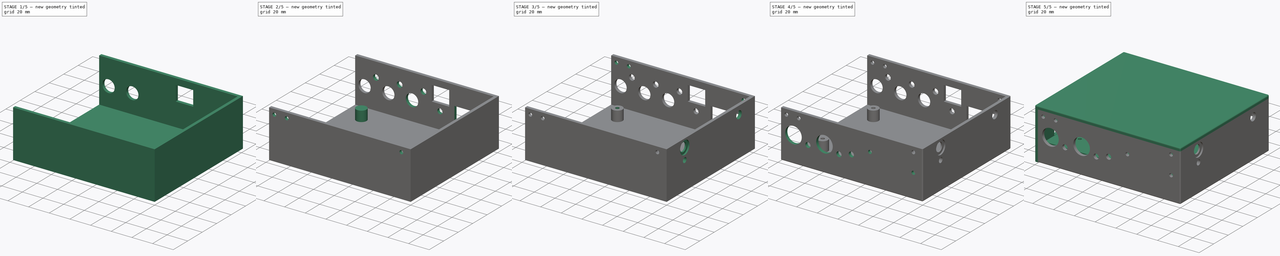
[diagram: build sequence overview — one tinted view per stage of 5, left to right]
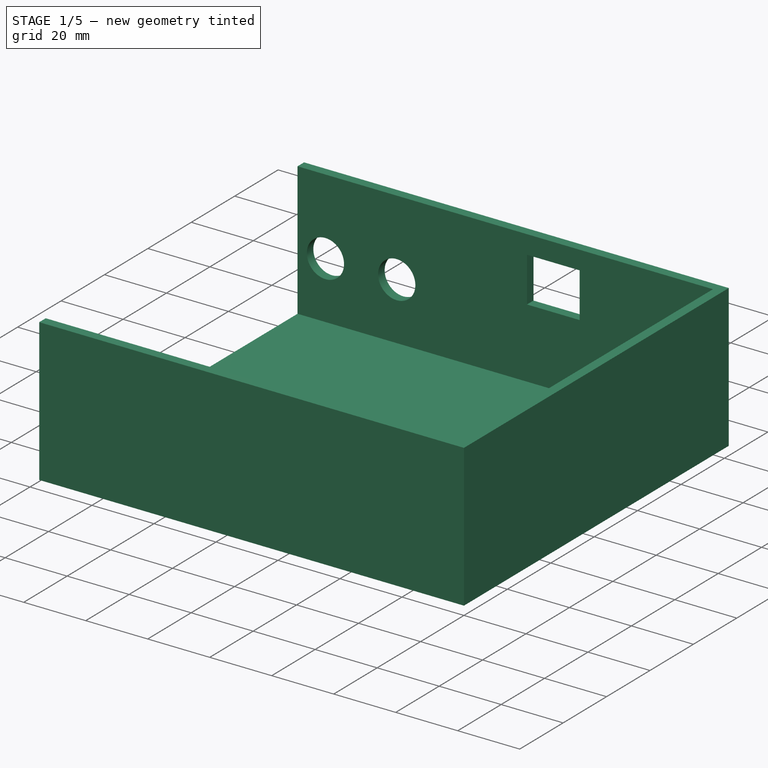
[diagram: stage 1 of 5 — iso view after this stage's code; geometry added in this stage tinted green]
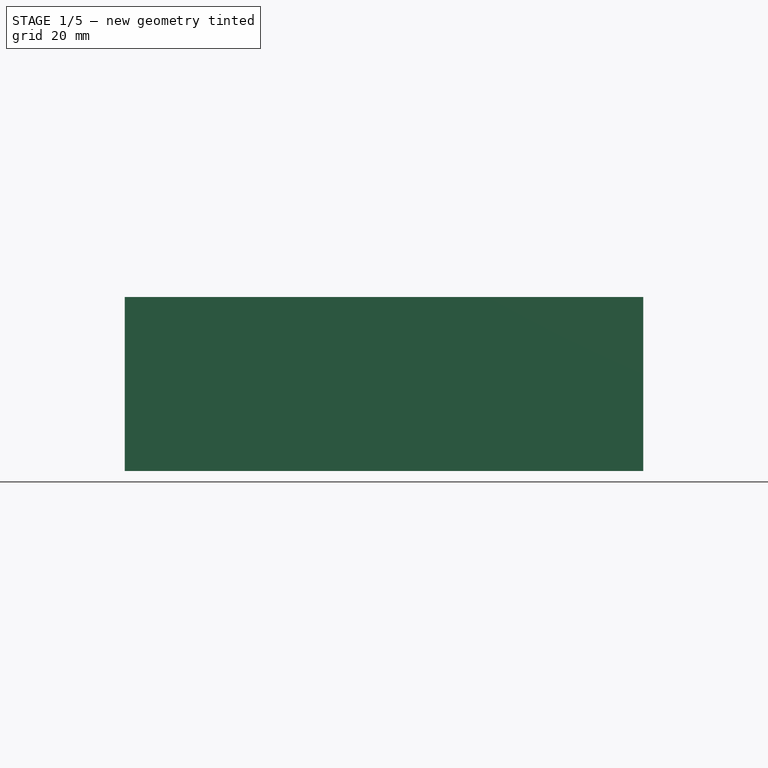
[diagram: stage 1 of 5 — front view after this stage's code; geometry added in this stage tinted green]
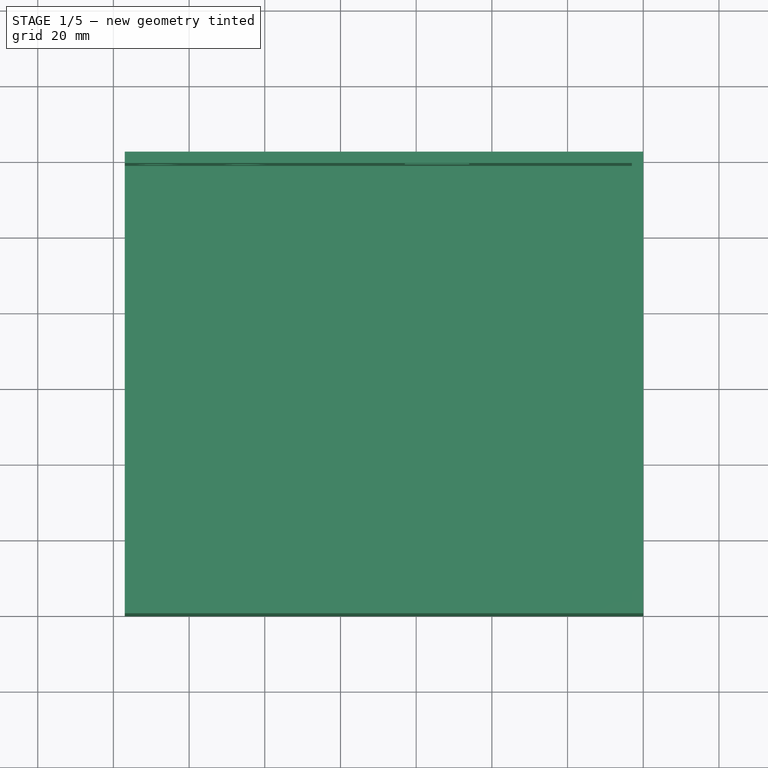
[diagram: stage 1 of 5 — top view after this stage's code; geometry added in this stage tinted green]
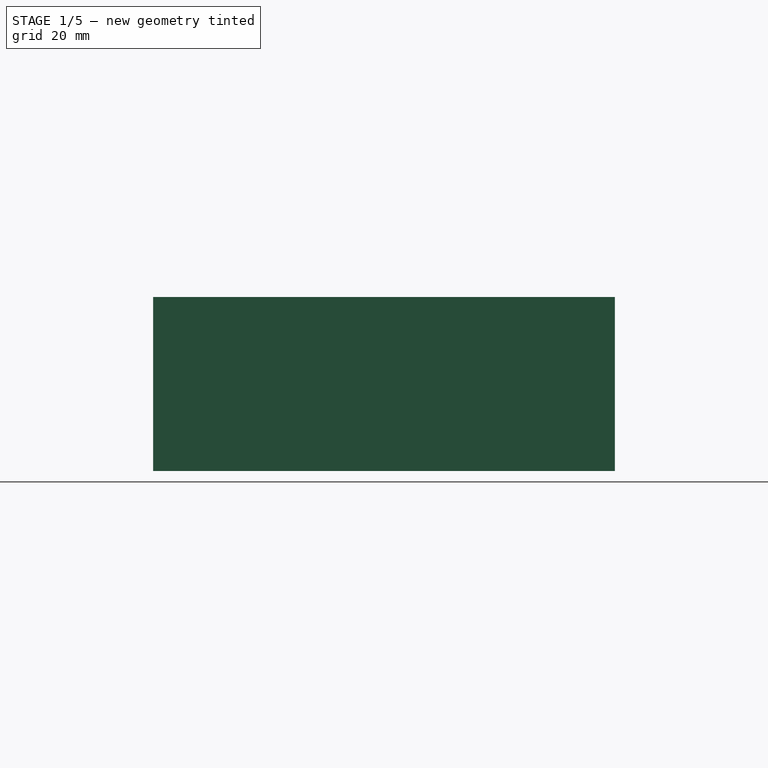
[diagram: stage 1 of 5 — right view after this stage's code; geometry added in this stage tinted green]
FCSTD DOCUMENT  (FreeCAD 0.20R29177 +426 (Git))
Label: Case
License: All rights reserved
LicenseURL: http://en.wikipedia.org/wiki/All_rights_reserved
objects: Sketcher::SketchObject×19, PartDesign::Pocket×16, Part::FeaturePython×5, PartDesign::Pad×3, TechDraw::DrawViewPart×3, TechDraw::DrawSVGTemplate×1, TechDraw::DrawPage×1, PartDesign::Fillet×1, PartDesign::Body×1
note: 65 computed .brp shape members not serialized (recipe doc carries the construction recipe); baked Part::Feature solids carry a one-line shape summary decoded from their .brp

FEATURE [Sketcher::SketchObject] Sketch  label="CaseBody"
  FullyConstrained = true
  MapMode = 5
  Support = -> [XY_Plane]
  sketch-geometry (4):
    g0: LineSegment StartX=3 StartY=122 StartZ=0 EndX=140 EndY=122 EndZ=0
    g1: LineSegment StartX=140 StartY=122 StartZ=0 EndX=140 EndY=0 EndZ=0
    g2: LineSegment StartX=140 StartY=0 StartZ=0 EndX=3 EndY=0 EndZ=0
    g3: LineSegment StartX=3 StartY=0 StartZ=0 EndX=3 EndY=122 EndZ=0
  constraints (12):
    c: Coincident(g0,g1)
    c: Coincident(g1,g2)
    c: Coincident(g2,g3)
    c: Coincident(g3,g0)
    c: Horizontal(g0)
    c: Horizontal(g2)
    c: Vertical(g1)
    c: Vertical(g3)
    c: DistanceY(g3,g3) = 122
    c: DistanceX(g2,g2) = 137
    c: DistanceY(g-1,g2) = 0
    c: DistanceX(g-1,g2) = 3
FEATURE [PartDesign::Pad] Pad  label="CaseBody001"
  Direction = (0,0,1)
  Length = 46
  Length2 = 10
  Profile = -> Sketch
  ReferenceAxis = -> Sketch [N_Axis]
  Type = 0
FEATURE [Sketcher::SketchObject] Sketch001  label="CaseBodyPocket"
  AttachmentOffset = pos=(0,0,47) rot=(0,0,1;0rad)
  FullyConstrained = true
  MapMode = 5
  Placement = pos=(0,0,47) rot=(0,0,1;0rad)
  Support = -> [XY_Plane]
  sketch-geometry (4):
    g0: LineSegment StartX=0 StartY=119 StartZ=0 EndX=137 EndY=119 EndZ=0
    g1: LineSegment StartX=137 StartY=119 StartZ=0 EndX=137 EndY=3 EndZ=0
    g2: LineSegment StartX=137 StartY=3 StartZ=0 EndX=0 EndY=3 EndZ=0
    g3: LineSegment StartX=0 StartY=3 StartZ=0 EndX=0 EndY=119 EndZ=0
  constraints (12):
    c: Coincident(g0,g1)
    c: Coincident(g1,g2)
    c: Coincident(g2,g3)
    c: Coincident(g3,g0)
    c: Horizontal(g0)
    c: Horizontal(g2)
    c: Vertical(g1)
    c: Vertical(g3)
    c: DistanceY(g3,g3) = 116
    c: DistanceX(g2,g2) = 137
    c: DistanceY(g-1,g2) = 3
    c: DistanceX(g-1,g2) = 0
FEATURE [PartDesign::Pocket] Pocket  label="CaseBodyPocket001"
  BaseFeature = -> Pad
  Direction = (0,0,-1)
  Length = 44
  Length2 = 5
  Profile = -> Sketch001
  ReferenceAxis = -> Sketch001 [N_Axis]
  Type = 0
FEATURE [Sketcher::SketchObject] Sketch005  label="RJ45-Hole"
  AttachmentOffset = pos=(77,25.5,-117) rot=(0,0,1;0rad)
  FullyConstrained = true
  MapMode = 5
  Placement = pos=(77,117,25.5) rot=(1,0,0;1.5708rad)
  Support = -> [XZ_Plane]
  sketch-geometry (4):
    g0: LineSegment StartX=0 StartY=14.5 StartZ=0 EndX=17 EndY=14.5 EndZ=0
    g1: LineSegment StartX=17 StartY=14.5 StartZ=0 EndX=17 EndY=0 EndZ=0
    g2: LineSegment StartX=17 StartY=0 StartZ=0 EndX=0 EndY=0 EndZ=0
    g3: LineSegment StartX=0 StartY=0 StartZ=0 EndX=0 EndY=14.5 EndZ=0
  constraints (11):
    c: Coincident(g0,g1)
    c: Coincident(g1,g2)
    c: Coincident(g2,g3)
    c: Coincident(g3,g0)
    c: Horizontal(g0)
    c: Horizontal(g2)
    c: Vertical(g1)
    c: Vertical(g3)
    c: Coincident(g2,g-1)
    c: DistanceX(g0,g0) = 17
    c: DistanceY(g1,g1) = 14.5
FEATURE [PartDesign::Pocket] Pocket003  label="RJ45-Hole001"
  BaseFeature = -> Pocket
  Direction = (0,1,2e-16)
  Length = 5
  Length2 = 5
  Profile = -> Sketch005
  ReferenceAxis = -> Sketch005 [N_Axis]
  Type = 0
FEATURE [Sketcher::SketchObject] Sketch006  label="RCA-Hole"
  AttachmentOffset = pos=(12,21.5,-117) rot=(0,0,1;0rad)
  FullyConstrained = true
  MapMode = 5
  Placement = pos=(12,117,21.5) rot=(1,0,0;1.5708rad)
  Support = -> [XZ_Plane]
  sketch-geometry (1):
    g0: Circle CenterX=0 CenterY=0 CenterZ=0 NormalX=0 NormalY=0 NormalZ=1 AngleXU=0 Radius=6
  constraints (2):
    c: Coincident(g0,g-1)
    c: Diameter(g0) = 12
FEATURE [Sketcher::SketchObject] Sketch007  label="RCA-Hole001"
  AttachmentOffset = pos=(35,21.5,-117) rot=(0,0,1;0rad)
  FullyConstrained = true
  MapMode = 5
  Placement = pos=(35,117,21.5) rot=(1,0,0;1.5708rad)
  Support = -> [XZ_Plane]
  sketch-geometry (1):
    g0: Circle CenterX=0 CenterY=0 CenterZ=0 NormalX=0 NormalY=0 NormalZ=1 AngleXU=0 Radius=6
  constraints (2):
    c: Coincident(g0,g-1)
    c: Diameter(g0) = 12
FEATURE [Sketcher::SketchObject] Sketch008  label="RCA-Hole002"
  AttachmentOffset = pos=(58,21.5,-117) rot=(0,0,1;0rad)
  FullyConstrained = true
  MapMode = 5
  Placement = pos=(58,117,21.5) rot=(1,0,0;1.5708rad)
  Support = -> [XZ_Plane]
  sketch-geometry (1):
    g0: Circle CenterX=0 CenterY=0 CenterZ=0 NormalX=0 NormalY=0 NormalZ=1 AngleXU=0 Radius=6
  constraints (2):
    c: Coincident(g0,g-1)
    c: Diameter(g0) = 12
FEATURE [PartDesign::Pocket] Pocket004  label="RCA-HolePocket"
  BaseFeature = -> Pocket003
  Direction = (0,1,2e-16)
  Length = 5
  Length2 = 5
  Profile = -> Sketch006
  ReferenceAxis = -> Sketch006 [N_Axis]
  Type = 0
FEATURE [PartDesign::Pocket] Pocket005  label="RCA-Hole001Pocket"
  BaseFeature = -> Pocket004
  Direction = (0,1,2e-16)
  Length = 5
  Length2 = 5
  Profile = -> Sketch007
  ReferenceAxis = -> Sketch007 [N_Axis]
  Type = 0
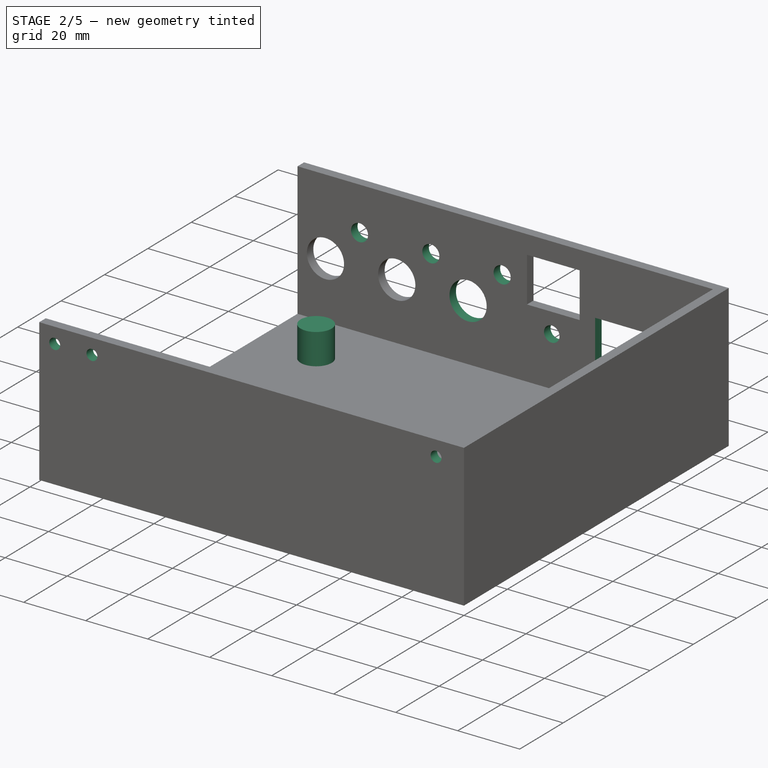
[diagram: stage 2 of 5 — iso view after this stage's code; geometry added in this stage tinted green]
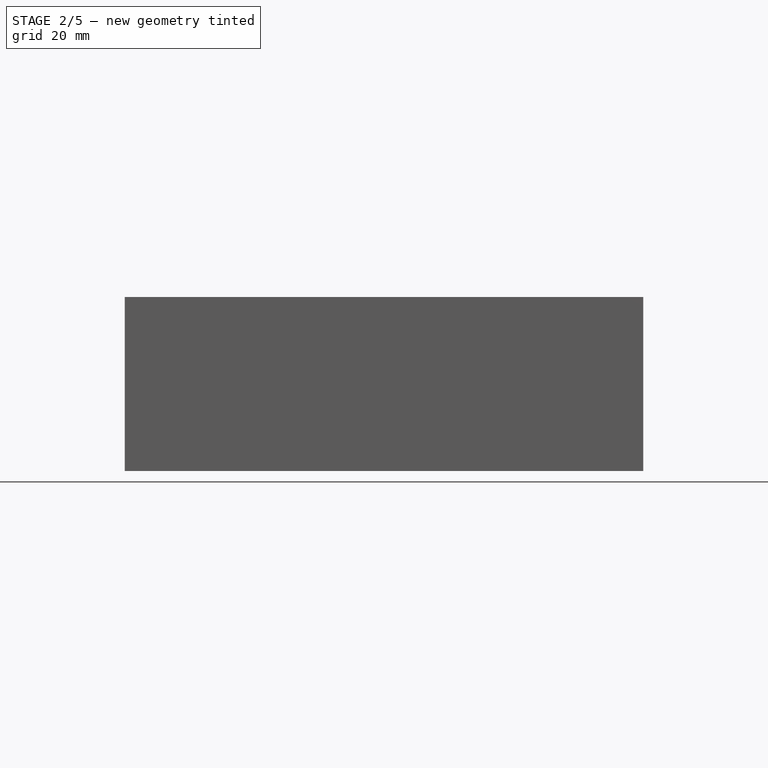
[diagram: stage 2 of 5 — front view after this stage's code; geometry added in this stage tinted green]
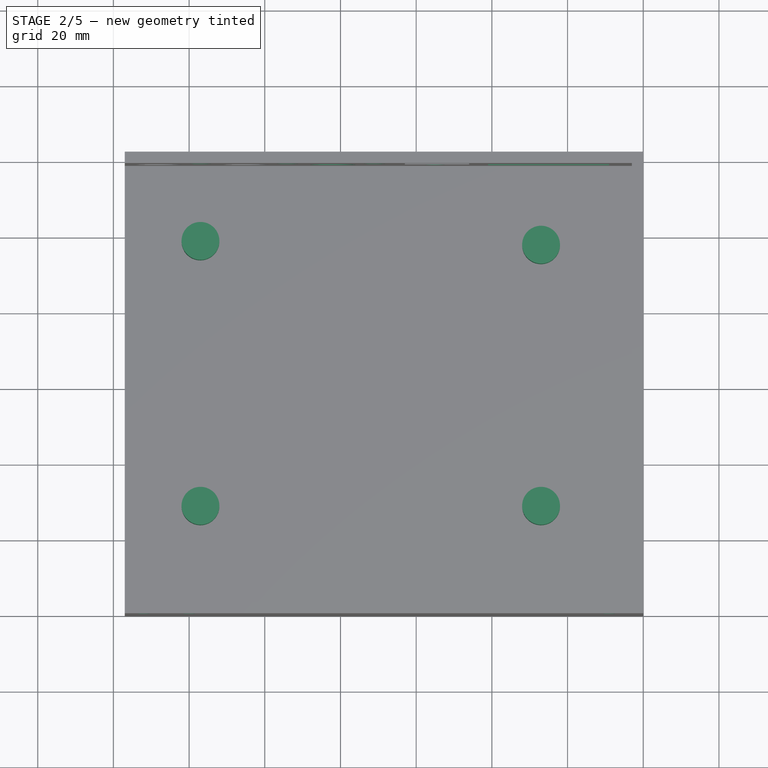
[diagram: stage 2 of 5 — top view after this stage's code; geometry added in this stage tinted green]
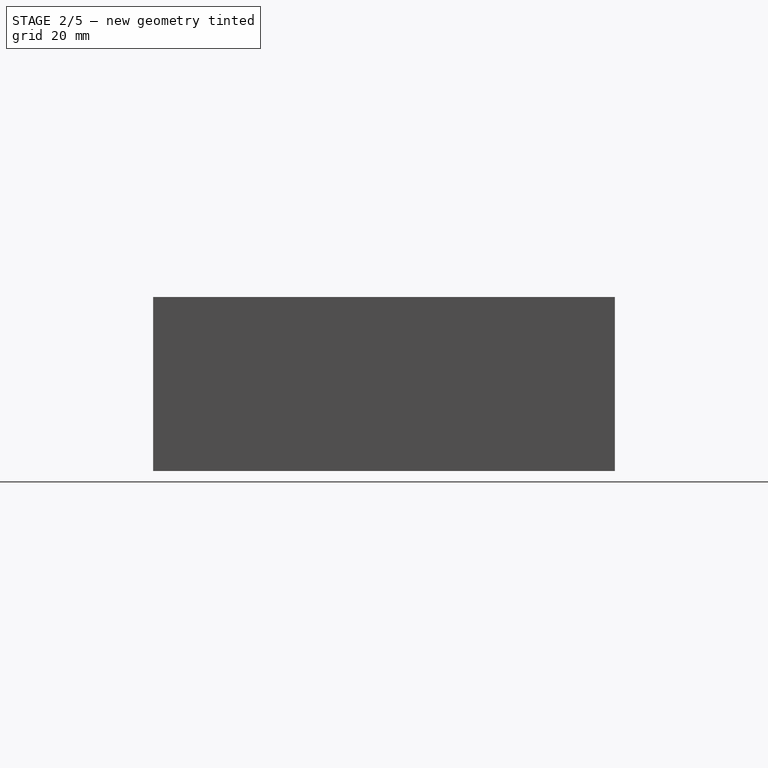
[diagram: stage 2 of 5 — right view after this stage's code; geometry added in this stage tinted green]
FEATURE [PartDesign::Pocket] Pocket006  label="RCA-Hole002Pocket"
  BaseFeature = -> Pocket005
  Direction = (0,1,2e-16)
  Length = 5
  Length2 = 5
  Profile = -> Sketch008
  ReferenceAxis = -> Sketch008 [N_Axis]
  Type = 0
FEATURE [Sketcher::SketchObject] Sketch009  label="LEDholes"
  AttachmentOffset = pos=(0,0,-117) rot=(0,0,1;0rad)
  FullyConstrained = true
  MapMode = 5
  Placement = pos=(0,117,2.6e-14) rot=(1,0,0;1.5708rad)
  Support = -> [XZ_Plane]
  sketch-geometry (4):
    g0: Circle CenterX=23 CenterY=32 CenterZ=0 NormalX=0 NormalY=0 NormalZ=1 AngleXU=0 Radius=2.75
    g1: Circle CenterX=46 CenterY=32 CenterZ=0 NormalX=0 NormalY=0 NormalZ=1 AngleXU=0 Radius=2.75
    g2: Circle CenterX=69 CenterY=32 CenterZ=0 NormalX=0 NormalY=0 NormalZ=1 AngleXU=0 Radius=2.75
    g3: Circle CenterX=85 CenterY=19 CenterZ=0 NormalX=0 NormalY=0 NormalZ=1 AngleXU=0 Radius=2.5
  constraints (12):
    c: Equal(g0,g1)
    c: Equal(g1,g2)
    c: Diameter(g0) = 5.5
    c: Horizontal(g0,g1)
    c: Horizontal(g1,g2)
    c: DistanceX(g0,g1) = 23
    c: DistanceX(g1,g2) = 23
    c: DistanceY(g-1,g2) = 32
    c: DistanceX(g-1,g0) = 23
    c: DistanceY(g-1,g3) = 19
    c: DistanceX(g-1,g3) = 85
    c: Diameter(g3) = 5
FEATURE [PartDesign::Pocket] Pocket007  label="LEDholes001"
  BaseFeature = -> Pocket006
  Direction = (0,1,2e-16)
  Length = 5
  Length2 = 5
  Profile = -> Sketch009
  ReferenceAxis = -> Sketch009 [N_Axis]
  Type = 0
FEATURE [PartDesign::Pad] Pad002  label="PCBSupport002"
  BaseFeature = -> Pocket007
  Direction = (0,0,1)
  Length = 10
  Length2 = 10
  Profile = -> Sketch002
  ReferenceAxis = -> Sketch002 [N_Axis]
  Type = 0
FEATURE [TechDraw::DrawSVGTemplate] Template
  EditableTexts = Designed_by_Name=Radmilo Felix; Drawing_number=Drawing number; FC-Date=2023.06.10; FC-SC=1:1; FC-SH=Sheet; FC-Title=Title; Subtitle=Dew Heater Controller Case; Weight=Weight
  Height = 210
  Orientation = 1
  Width = 297
FEATURE [Sketcher::SketchObject] Sketch010  label="RS232-DB9-ConnectorHolderHole"
  AttachmentOffset = pos=(115,21,-117) rot=(0,0,1;0rad)
  FullyConstrained = true
  MapMode = 5
  Placement = pos=(115,117,21) rot=(1,0,0;1.5708rad)
  Support = -> [XZ_Plane]
  sketch-geometry (4):
    g0: LineSegment StartX=-16 StartY=6.5 StartZ=0 EndX=16 EndY=6.5 EndZ=0
    g1: LineSegment StartX=16 StartY=6.5 StartZ=0 EndX=16 EndY=-6.5 EndZ=0
    g2: LineSegment StartX=16 StartY=-6.5 StartZ=0 EndX=-16 EndY=-6.5 EndZ=0
    g3: LineSegment StartX=-16 StartY=-6.5 StartZ=0 EndX=-16 EndY=6.5 EndZ=0
  constraints (10):
    c: Coincident(g0,g1)
    c: Coincident(g1,g2)
    c: Coincident(g2,g3)
    c: Coincident(g3,g0)
    c: Horizontal(g2)
    c: Vertical(g1)
    c: DistanceY(g3,g3) = 13
    c: DistanceX(g0,g0) = 32
    c: Symmetric(g0,g0,g-2)
    c: Symmetric(g0,g2,g-1)
FEATURE [PartDesign::Pocket] Pocket008  label="RS232-DB9-ConnectorHolderHole001"
  BaseFeature = -> Pad002
  Direction = (0,1,2e-16)
  Length = 5
  Length2 = 5
  Profile = -> Sketch010
  ReferenceAxis = -> Sketch010 [N_Axis]
  Type = 0
FEATURE [Sketcher::SketchObject] Sketch011  label="MountingScrewsB"
  FullyConstrained = true
  MapMode = 5
  Placement = pos=(0,0,0) rot=(1,0,0;1.5708rad)
  Support = -> [XZ_Plane]
  sketch-geometry (3):
    g0: Circle CenterX=8 CenterY=41 CenterZ=0 NormalX=0 NormalY=0 NormalZ=1 AngleXU=0 Radius=1.75
    g1: Circle CenterX=20 CenterY=41 CenterZ=0 NormalX=0 NormalY=0 NormalZ=1 AngleXU=0 Radius=1.75
    g2: Circle CenterX=131 CenterY=41 CenterZ=0 NormalX=0 NormalY=0 NormalZ=1 AngleXU=0 Radius=1.75
  constraints (9):
    c: Horizontal(g0,g1)
    c: Horizontal(g1,g2)
    c: Equal(g0,g1)
    c: Equal(g1,g2)
    c: Diameter(g0) = 3.5
    c: DistanceY(g-1,g0) = 41
    c: DistanceX(g-1,g0) = 8
    c: DistanceX(g-1,g1) = 20
    c: DistanceX(g-1,g2) = 131
FEATURE [Sketcher::SketchObject] Sketch012  label="MountingScrewsT"
  AttachmentOffset = pos=(0,0,-122) rot=(0,0,1;0rad)
  FullyConstrained = true
  MapMode = 5
  Placement = pos=(0,122,2.71e-14) rot=(1,0,0;1.5708rad)
  Support = -> [XZ_Plane]
  sketch-geometry (3):
    g0: Circle CenterX=8 CenterY=41 CenterZ=0 NormalX=0 NormalY=0 NormalZ=1 AngleXU=0 Radius=1.75
    g1: Circle CenterX=20 CenterY=41 CenterZ=0 NormalX=0 NormalY=0 NormalZ=1 AngleXU=0 Radius=1.75
    g2: Circle CenterX=131 CenterY=41 CenterZ=0 NormalX=0 NormalY=0 NormalZ=1 AngleXU=0 Radius=1.75
  constraints (9):
    c: Horizontal(g0,g1)
    c: Horizontal(g1,g2)
    c: Equal(g0,g1)
    c: Equal(g1,g2)
    c: Diameter(g0) = 3.5
    c: DistanceY(g-1,g0) = 41
    c: DistanceX(g-1,g0) = 8
    c: DistanceX(g-1,g1) = 20
    c: DistanceX(g-1,g2) = 131
FEATURE [PartDesign::Pocket] Pocket009  label="MountingScrewsB001"
  BaseFeature = -> Pocket008
  Direction = (0,1,2e-16)
  Length = 5
  Length2 = 5
  Profile = -> Sketch011
  ReferenceAxis = -> Sketch011 [N_Axis]
  Type = 0
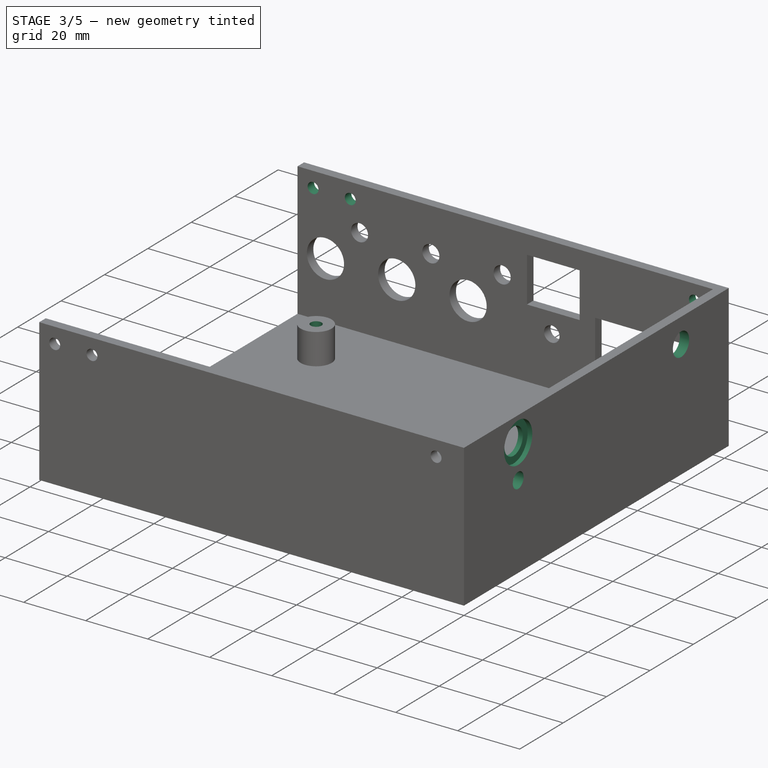
[diagram: stage 3 of 5 — iso view after this stage's code; geometry added in this stage tinted green]
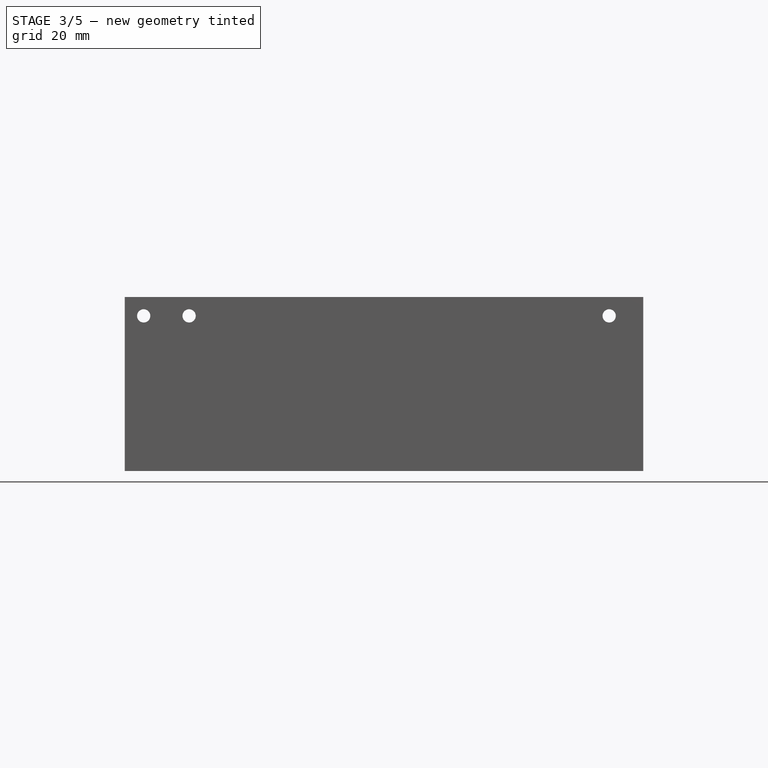
[diagram: stage 3 of 5 — front view after this stage's code; geometry added in this stage tinted green]
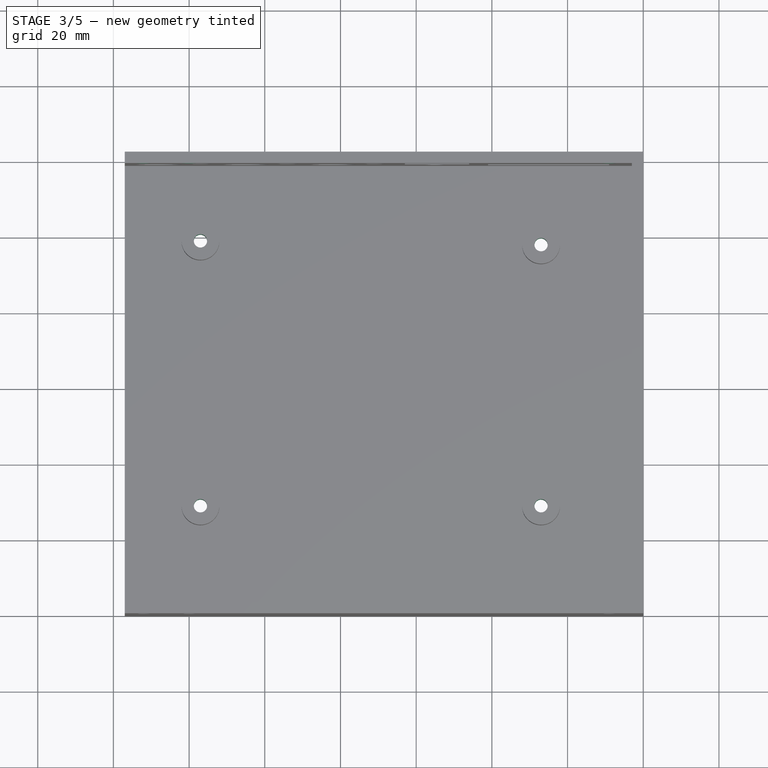
[diagram: stage 3 of 5 — top view after this stage's code; geometry added in this stage tinted green]
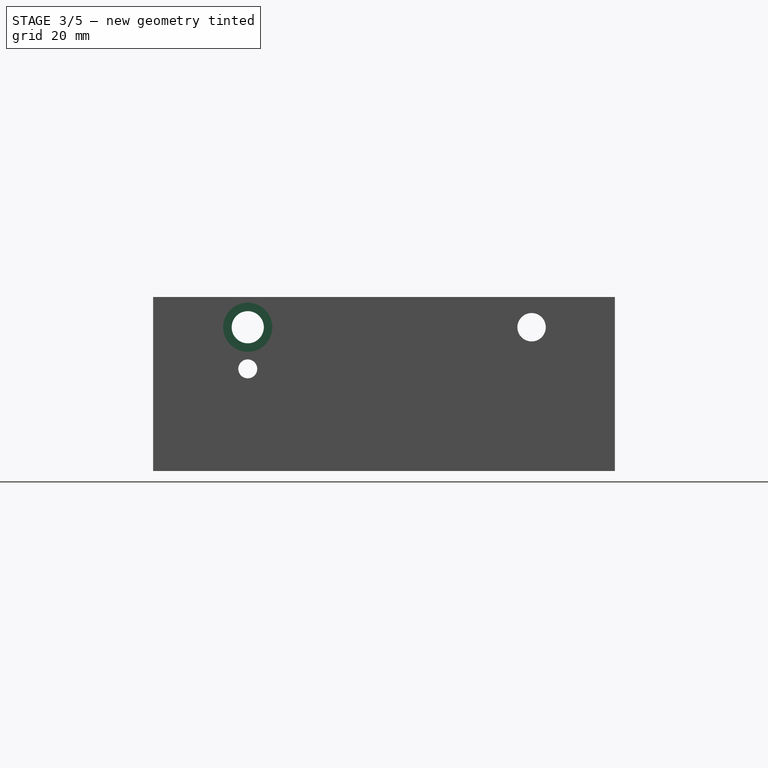
[diagram: stage 3 of 5 — right view after this stage's code; geometry added in this stage tinted green]
FEATURE [PartDesign::Pocket] Pocket010  label="MountingScrewsT001"
  BaseFeature = -> Pocket009
  Direction = (0,1,2e-16)
  Length = 5
  Length2 = 5
  Profile = -> Sketch012
  ReferenceAxis = -> Sketch012 [N_Axis]
  Reversed = true
  Type = 0
FEATURE [Sketcher::SketchObject] Sketch013  label="PCBSscrewHeadHoles"
  FullyConstrained = true
  MapMode = 5
  Support = -> [XY_Plane]
  sketch-geometry (4):
    g0: Circle CenterX=23 CenterY=99 CenterZ=0 NormalX=0 NormalY=0 NormalZ=1 AngleXU=0 Radius=3.25
    g1: Circle CenterX=113 CenterY=98 CenterZ=0 NormalX=0 NormalY=0 NormalZ=1 AngleXU=0 Radius=3.25
    g2: Circle CenterX=23 CenterY=29 CenterZ=0 NormalX=0 NormalY=0 NormalZ=1 AngleXU=0 Radius=3.25
    g3: Circle CenterX=113 CenterY=29 CenterZ=0 NormalX=0 NormalY=0 NormalZ=1 AngleXU=0 Radius=3.25
  constraints (12):
    c: Equal(g0,g1)
    c: Equal(g1,g3)
    c: Equal(g3,g2)
    c: Diameter(g0) = 6.5
    c: DistanceX(g2) = 23
    c: DistanceY(g-1,g2) = 29
    c: DistanceX(g-1,g1) = 113
    c: DistanceY(g-1,g1) = 98
    c: DistanceY(g-1,g3) = 29
    c: DistanceX(g-1,g3) = 113
    c: DistanceX(g-1,g0) = 23
    c: DistanceY(g-1,g0) = 99
FEATURE [PartDesign::Pocket] Pocket011  label="PCBSscrewHeadHoles001"
  BaseFeature = -> Pocket010
  Direction = (0,0,-1)
  Length = 3.5
  Length2 = 5
  Profile = -> Sketch013
  ReferenceAxis = -> Sketch013 [N_Axis]
  Reversed = true
  Type = 0
FEATURE [PartDesign::Pocket] Pocket012  label="PCBSupportHoles001"
  BaseFeature = -> Pocket011
  Direction = (0,0,-1)
  Length = 13
  Length2 = 5
  Profile = -> Sketch003
  ReferenceAxis = -> Sketch003 [N_Axis]
  Type = 0
FEATURE [Sketcher::SketchObject] Sketch014  label="PowerReset-PLEDHoles"
  AttachmentOffset = pos=(0,0,140) rot=(0,0,1;0rad)
  FullyConstrained = true
  MapMode = 5
  Placement = pos=(140,-3.11e-14,3.11e-14) rot=(0.57735,0.57735,0.57735;2.0944rad)
  Support = -> [YZ_Plane]
  sketch-geometry (3):
    g0: Circle CenterX=25 CenterY=38 CenterZ=0 NormalX=0 NormalY=0 NormalZ=1 AngleXU=0 Radius=4.25
    g1: Circle CenterX=100 CenterY=38 CenterZ=0 NormalX=0 NormalY=0 NormalZ=1 AngleXU=0 Radius=3.75
    g2: Circle CenterX=25 CenterY=27 CenterZ=0 NormalX=0 NormalY=0 NormalZ=1 AngleXU=0 Radius=2.5
  constraints (9):
    c: Diameter(g0) = 8.5
    c: Diameter(g1) = 7.5
    c: Diameter(g2) = 5
    c: DistanceX(g-1,g0) = 25
    c: DistanceY(g-1,g0) = 38
    c: DistanceY(g-1,g1) = 38
    c: DistanceX(g-1,g1) = 100
    c: Vertical(g0,g2)
    c: DistanceY(g2,g0) = 11
FEATURE [Sketcher::SketchObject] Sketch015  label="PowerConnectorNutHole"
  AttachmentOffset = pos=(0,0,140) rot=(0,0,1;0rad)
  FullyConstrained = true
  MapMode = 5
  Placement = pos=(140,-3.11e-14,3.11e-14) rot=(0.57735,0.57735,0.57735;2.0944rad)
  Support = -> [YZ_Plane]
  sketch-geometry (1):
    g0: Circle CenterX=25 CenterY=38 CenterZ=0 NormalX=0 NormalY=0 NormalZ=1 AngleXU=0 Radius=6.5
  constraints (3):
    c: Diameter(g0) = 13
    c: DistanceX(g-1,g0) = 25
    c: DistanceY(g-1,g0) = 38
FEATURE [PartDesign::Pocket] Pocket013  label="PowerReset-PLEDHoles001"
  BaseFeature = -> Pocket012
  Direction = (-1,2e-16,-3e-16)
  Length = 5
  Length2 = 5
  Profile = -> Sketch014
  ReferenceAxis = -> Sketch014 [N_Axis]
  Type = 0
FEATURE [PartDesign::Pocket] Pocket014  label="PowerConnectorNutHole001"
  BaseFeature = -> Pocket013
  Direction = (-1,2e-16,-3e-16)
  Length = 1.5
  Length2 = 5
  Profile = -> Sketch015
  ReferenceAxis = -> Sketch015 [N_Axis]
  Type = 0
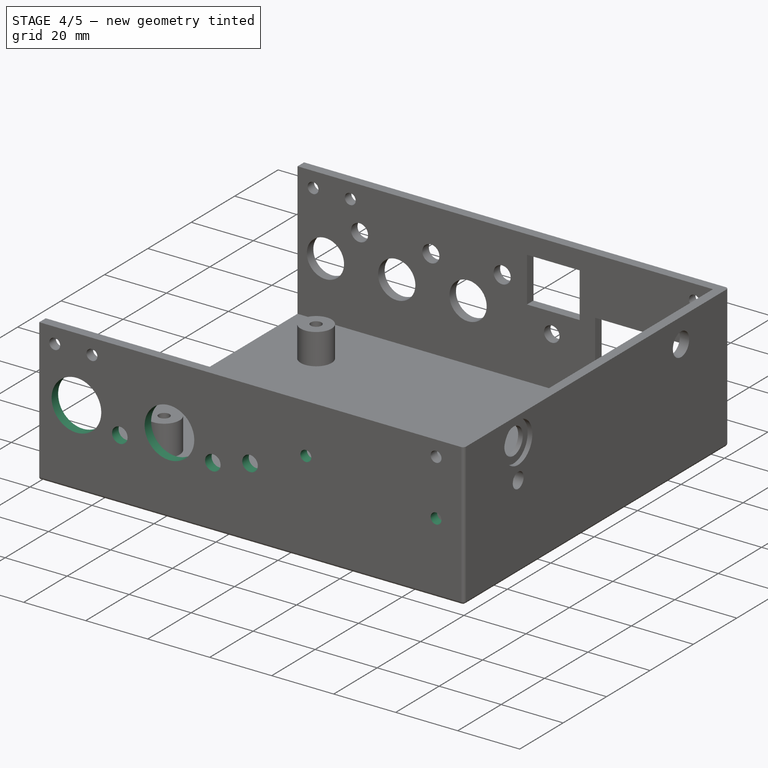
[diagram: stage 4 of 5 — iso view after this stage's code; geometry added in this stage tinted green]
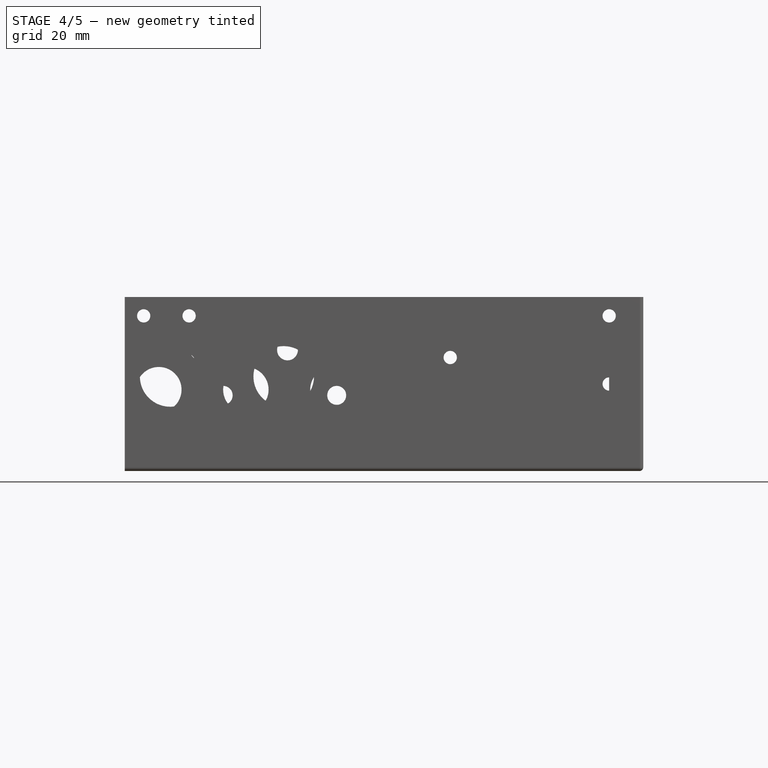
[diagram: stage 4 of 5 — front view after this stage's code; geometry added in this stage tinted green]
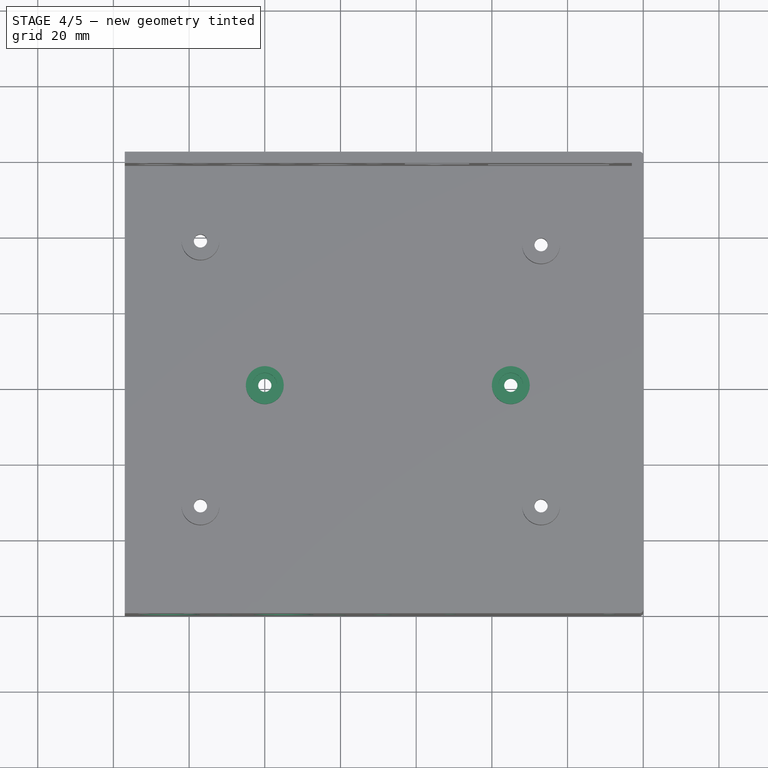
[diagram: stage 4 of 5 — top view after this stage's code; geometry added in this stage tinted green]
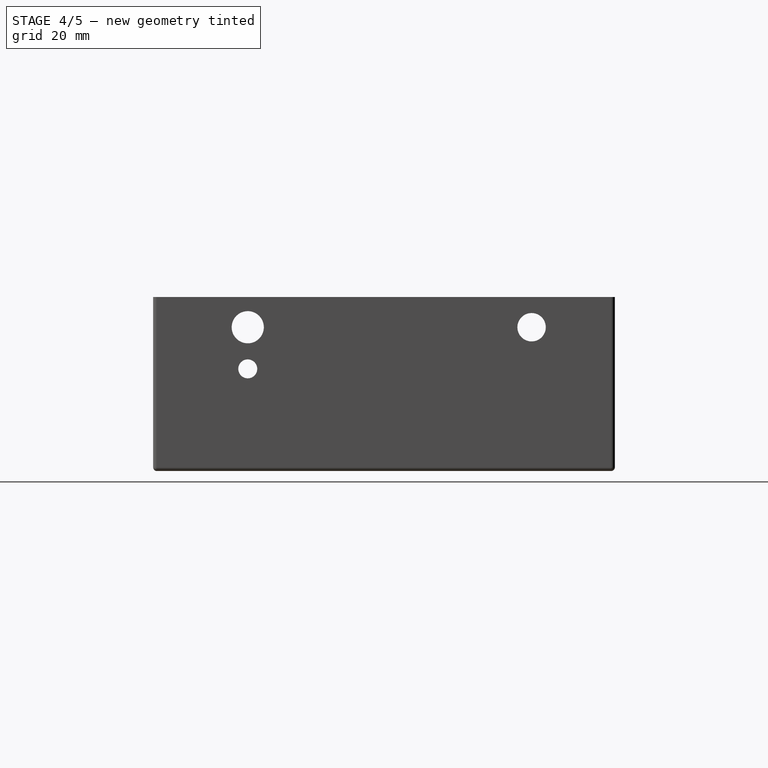
[diagram: stage 4 of 5 — right view after this stage's code; geometry added in this stage tinted green]
FEATURE [Sketcher::SketchObject] Sketch016  label="FanConnecors_DHT_LEDs"
  FullyConstrained = true
  MapMode = 5
  Placement = pos=(0,0,0) rot=(1,0,0;1.5708rad)
  Support = -> [XZ_Plane]
  sketch-geometry (7):
    g0: Circle CenterX=15 CenterY=25 CenterZ=0 NormalX=0 NormalY=0 NormalZ=1 AngleXU=0 Radius=8
    g1: Circle CenterX=45 CenterY=25 CenterZ=0 NormalX=0 NormalY=0 NormalZ=1 AngleXU=0 Radius=8
    g2: Circle CenterX=89 CenterY=30 CenterZ=0 NormalX=0 NormalY=0 NormalZ=1 AngleXU=0 Radius=1.75
    g3: Circle CenterX=131 CenterY=23 CenterZ=0 NormalX=0 NormalY=0 NormalZ=1 AngleXU=0 Radius=1.75
    g4: Circle CenterX=71 CenterY=23 CenterZ=0 NormalX=0 NormalY=0 NormalZ=1 AngleXU=0 Radius=2.5
    g5: Circle CenterX=29 CenterY=20 CenterZ=0 NormalX=0 NormalY=0 NormalZ=1 AngleXU=0 Radius=2.5
    g6: Circle CenterX=59 CenterY=20 CenterZ=0 NormalX=0 NormalY=0 NormalZ=1 AngleXU=0 Radius=2.5
  constraints (21):
    c: Equal(g2,g3)
    c: Equal(g0,g1)
    c: Horizontal(g0,g1)
    c: Diameter(g1) = 16
    c: Diameter(g2) = 3.5
    c: DistanceX(g0,g1) = 30
    c: Horizontal(g4,g3)
    c: DistanceX(g4,g3) = 60
    c: Diameter(g4) = 5
    c: DistanceX(g2,g3) = 42
    c: DistanceY(g3,g2) = 7
    c: DistanceY(g-1,g0) = 25
    c: DistanceX(g-1,g0) = 15
    c: DistanceX(g-1,g3) = 131
    c: DistanceY(g-1,g3) = 23
    c: Equal(g5,g6)
    c: Diameter(g5) = 5
    c: DistanceX(g5,g6) = 30
    c: Horizontal(g6,g5)
    c: DistanceY(g-1,g6) = 20
    c: DistanceX(g-1,g5) = 29
FEATURE [PartDesign::Pocket] Pocket015  label="FanConnecors_DHT_LEDs001"
  BaseFeature = -> Pocket014
  Direction = (0,1,2e-16)
  Length = 5
  Length2 = 5
  Profile = -> Sketch016
  ReferenceAxis = -> Sketch016 [N_Axis]
  Type = 0
FEATURE [TechDraw::DrawViewPart] View001  label="View Bottom"
  CoarseView = false
  Direction = (0,-1,0)
  Focus = 100
  HardHidden = false
  IsoCount = 0
  IsoHidden = false
  IsoVisible = false
  LockPosition = false
  Perspective = false
  Rotation = 0
  ScaleType = 0
  SeamHidden = false
  SeamVisible = true
  SmoothHidden = false
  SmoothVisible = true
  Source = -> [Pocket015]
  X = 82
  XDirection = (1,0,0)
  Y = 166.315
FEATURE [Sketcher::SketchObject] Sketch017  label="CaseHolderPads"
  FullyConstrained = true
  MapMode = 5
  Support = -> [XY_Plane]
  sketch-geometry (2):
    g0: Circle CenterX=40 CenterY=61 CenterZ=0 NormalX=0 NormalY=0 NormalZ=1 AngleXU=0 Radius=5
    g1: Circle CenterX=105 CenterY=61 CenterZ=0 NormalX=0 NormalY=0 NormalZ=1 AngleXU=0 Radius=5
  constraints (6):
    c: Equal(g0,g1)
    c: Diameter(g0) = 10
    c: Horizontal(g0,g1)
    c: DistanceX(g0,g1) = 65
    c: DistanceY(g-1,g0) = 61
    c: DistanceX(g-1,g0) = 40
FEATURE [Sketcher::SketchObject] Sketch018  label="CaseHolderHoles"
  FullyConstrained = true
  MapMode = 5
  sketch-geometry (2):
    g0: Circle CenterX=40 CenterY=61 CenterZ=0 NormalX=0 NormalY=0 NormalZ=1 AngleXU=0 Radius=1.75
    g1: Circle CenterX=105 CenterY=61 CenterZ=0 NormalX=0 NormalY=0 NormalZ=1 AngleXU=0 Radius=1.75
  constraints (6):
    c: Equal(g0,g1)
    c: Diameter(g0) = 3.5
    c: Horizontal(g0,g1)
    c: DistanceX(g0,g1) = 65
    c: DistanceY(g-1,g0) = 61
    c: DistanceX(g-1,g0) = 40
FEATURE [PartDesign::Pad] Pad003  label="CaseHolderPads001"
  BaseFeature = -> Pocket015
  Direction = (0,0,1)
  Length = 7
  Length2 = 10
  Profile = -> Sketch017
  ReferenceAxis = -> Sketch017 [N_Axis]
  Type = 0
FEATURE [Sketcher::SketchObject] Sketch019  label="CaseHolderNutHoles"
  FullyConstrained = true
  MapMode = 5
  Placement = pos=(0,0,7) rot=(0,0,1;0rad)
  sketch-geometry (2):
    g0: Circle CenterX=40 CenterY=61 CenterZ=0 NormalX=0 NormalY=0 NormalZ=1 AngleXU=0 Radius=3.25
    g1: Circle CenterX=105 CenterY=61 CenterZ=0 NormalX=0 NormalY=0 NormalZ=1 AngleXU=0 Radius=3.25
  constraints (6):
    c: Equal(g0,g1)
    c: Diameter(g0) = 6.5
    c: Horizontal(g0,g1)
    c: DistanceX(g0,g1) = 65
    c: DistanceY(g-1,g0) = 61
    c: DistanceX(g-1,g0) = 40
FEATURE [PartDesign::Pocket] Pocket016  label="CaseHolderHoles001"
  BaseFeature = -> Pad003
  Direction = (0,0,-1)
  Length = 10
  Length2 = 5
  Profile = -> Sketch018
  ReferenceAxis = -> Sketch018 [N_Axis]
  Reversed = true
  Type = 0
FEATURE [PartDesign::Pocket] Pocket017  label="CaseHolderNutHoles001"
  BaseFeature = -> Pocket016
  Direction = (0,0,-1)
  Length = 3.5
  Length2 = 5
  Profile = -> Sketch019
  ReferenceAxis = -> Sketch019 [N_Axis]
  Type = 0
FEATURE [TechDraw::DrawViewPart] View002  label="View Right"
  CoarseView = false
  Direction = (1,0,0)
  Focus = 100
  HardHidden = false
  IsoCount = 0
  IsoHidden = false
  IsoVisible = false
  LockPosition = false
  Perspective = false
  Rotation = 180
  ScaleType = 0
  SeamHidden = false
  SeamVisible = true
  SmoothHidden = false
  SmoothVisible = true
  Source = -> [Pocket017]
  X = 217.564
  XDirection = (0,-1,0)
  Y = 166.425
FEATURE [TechDraw::DrawViewPart] View003  label="View Top"
  CoarseView = false
  Direction = (0,1,0)
  Focus = 100
  HardHidden = false
  IsoCount = 0
  IsoHidden = false
  IsoVisible = false
  LockPosition = false
  Perspective = false
  Rotation = 180
  ScaleType = 0
  SeamHidden = false
  SeamVisible = true
  SmoothHidden = false
  SmoothVisible = true
  X = 85.4536
  XDirection = (1,0,0)
  Y = 95.7028
FEATURE [TechDraw::DrawPage] Page
  KeepUpdated = true
  NextBalloonIndex = 1
  ProjectionType = 0
  Template = -> Template
  Views = -> [View001,View002,View003]
FEATURE [PartDesign::Fillet] Fillet
  Base = -> Pocket017 [Edge31,Edge30,Edge2,Edge43,Edge4]
  BaseFeature = -> Pocket017
  Radius = 1
  SupportTransform = false
  UseAllEdges = false
FEATURE [PartDesign::Body] Body
  Group = -> [Sketch,Pad,Sketch001,Pocket,Sketch002,Sketch005,Pocket003,Sketch006,Sketch007,Sketch008,Pocket004,Pocket005,Pocket006,Sketch009,Pocket007,Pad002,Sketch010,Pocket008,Sketch011,Sketch012,Pocket009,Pocket010,Sketch013,Pocket011,Sketch003,Pocket012,Sketch014,Sketch015,Pocket013,Pocket014,Sketch016,Pocket015,Sketch017,Sketch018,Pad003,Sketch019,Pocket016,Pocket017,Fillet]
  Origin = -> Origin
  Tip = -> Fillet
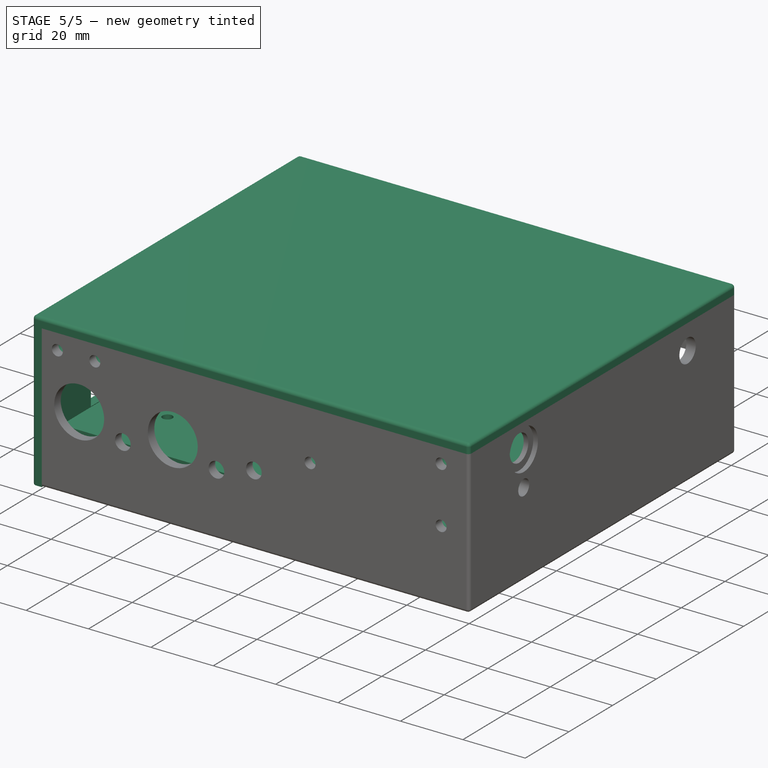
[diagram: stage 5 of 5 — iso view after this stage's code; geometry added in this stage tinted green]
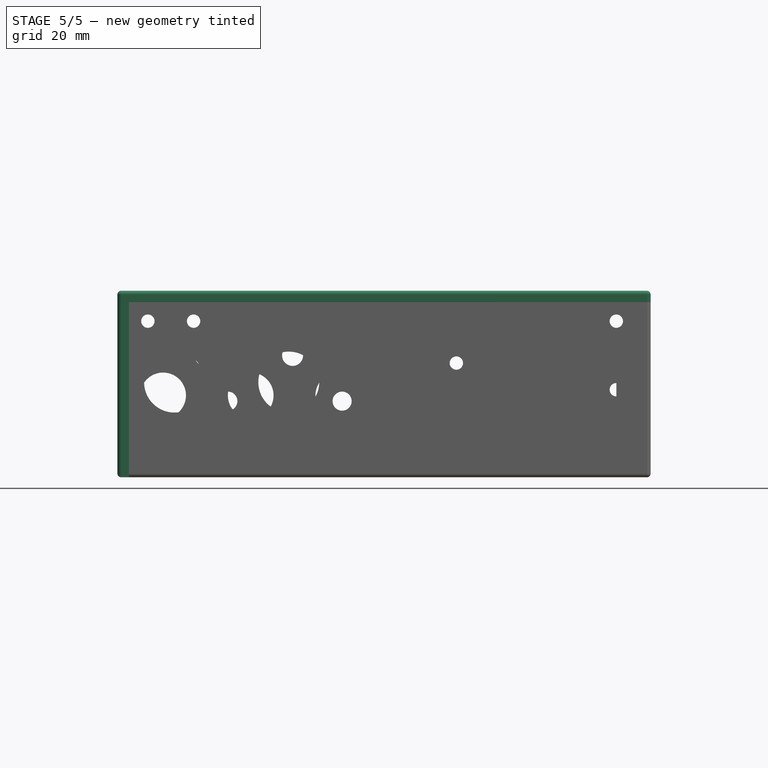
[diagram: stage 5 of 5 — front view after this stage's code; geometry added in this stage tinted green]
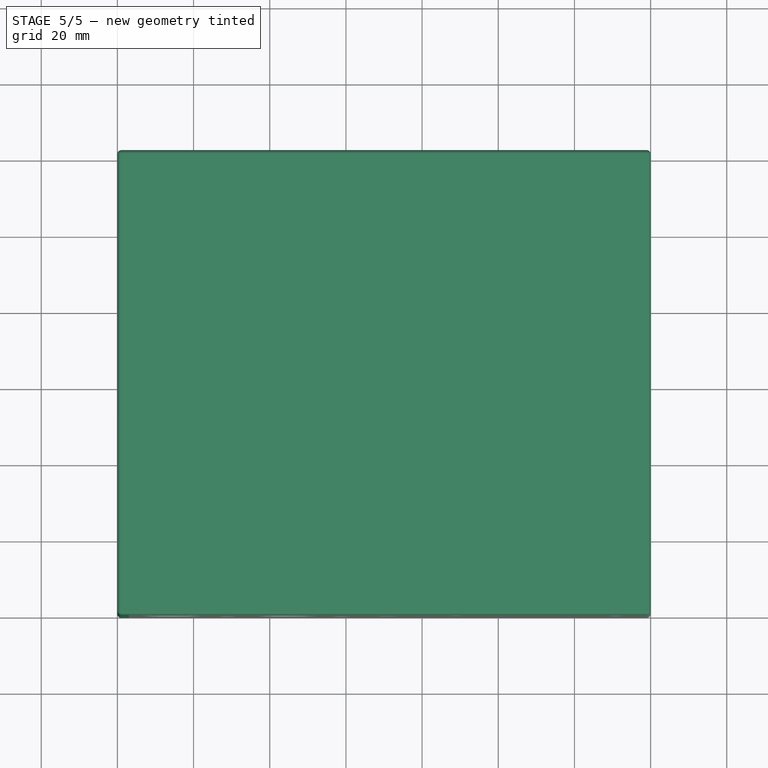
[diagram: stage 5 of 5 — top view after this stage's code; geometry added in this stage tinted green]
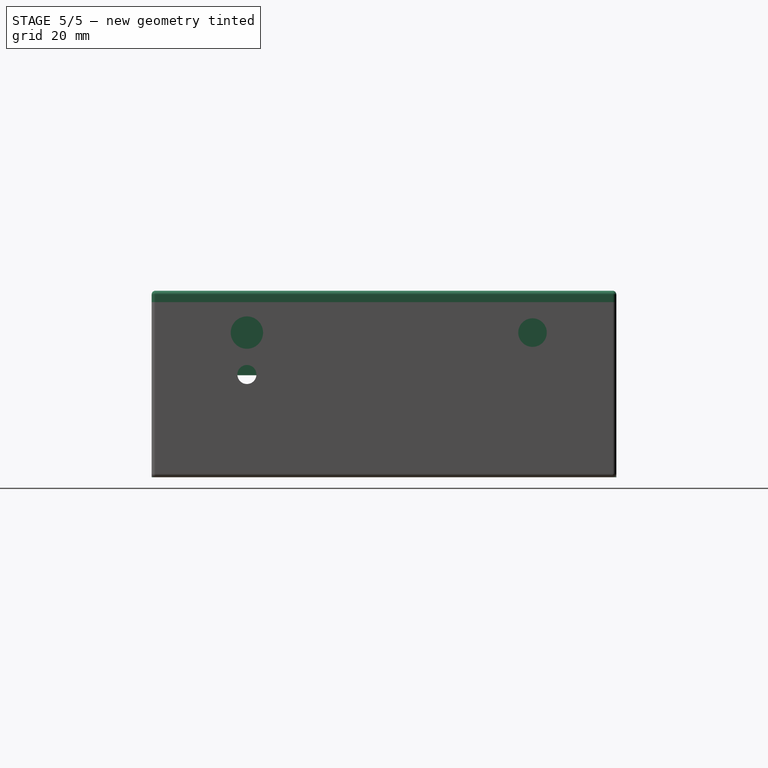
[diagram: stage 5 of 5 — right view after this stage's code; geometry added in this stage tinted green]
FEATURE [Sketcher::SketchObject] Sketch002  label="PCBSupport"
  AttachmentOffset = pos=(0,0,3) rot=(0,0,1;0rad)
  FullyConstrained = true
  MapMode = 5
  Placement = pos=(0,0,3) rot=(0,0,1;0rad)
  sketch-geometry (4):
    g0: Circle CenterX=23 CenterY=99 CenterZ=0 NormalX=0 NormalY=0 NormalZ=1 AngleXU=0 Radius=5
    g1: Circle CenterX=113 CenterY=98 CenterZ=0 NormalX=0 NormalY=0 NormalZ=1 AngleXU=0 Radius=5
    g2: Circle CenterX=23 CenterY=29 CenterZ=0 NormalX=0 NormalY=0 NormalZ=1 AngleXU=0 Radius=5
    g3: Circle CenterX=113 CenterY=29 CenterZ=0 NormalX=0 NormalY=0 NormalZ=1 AngleXU=0 Radius=5
  constraints (12):
    c: Equal(g0,g1)
    c: Equal(g1,g3)
    c: Equal(g3,g2)
    c: Diameter(g0) = 10
    c: DistanceX(g2) = 23
    c: DistanceY(g-1,g2) = 29
    c: DistanceX(g-1,g1) = 113
    c: DistanceY(g-1,g1) = 98
    c: DistanceY(g-1,g3) = 29
    c: DistanceX(g-1,g3) = 113
    c: DistanceX(g-1,g0) = 23
    c: DistanceY(g-1,g0) = 99
FEATURE [Sketcher::SketchObject] Sketch003  label="PCBSupportHoles"
  AttachmentOffset = pos=(0,0,13) rot=(0,0,1;0rad)
  FullyConstrained = true
  MapMode = 5
  Placement = pos=(0,0,13) rot=(0,0,1;0rad)
  Support = -> [XY_Plane]
  sketch-geometry (4):
    g0: Circle CenterX=23 CenterY=99 CenterZ=0 NormalX=0 NormalY=0 NormalZ=1 AngleXU=0 Radius=1.75
    g1: Circle CenterX=113 CenterY=98 CenterZ=0 NormalX=0 NormalY=0 NormalZ=1 AngleXU=0 Radius=1.75
    g2: Circle CenterX=23 CenterY=29 CenterZ=0 NormalX=0 NormalY=0 NormalZ=1 AngleXU=0 Radius=1.75
    g3: Circle CenterX=113 CenterY=29 CenterZ=0 NormalX=0 NormalY=0 NormalZ=1 AngleXU=0 Radius=1.75
  constraints (12):
    c: Equal(g0,g1)
    c: Equal(g1,g3)
    c: Equal(g3,g2)
    c: Diameter(g0) = 3.5
    c: DistanceX(g2) = 23
    c: DistanceY(g-1,g2) = 29
    c: DistanceX(g-1,g1) = 113
    c: DistanceY(g-1,g1) = 98
    c: DistanceY(g-1,g3) = 29
    c: DistanceX(g-1,g3) = 113
    c: DistanceX(g-1,g0) = 23
    c: DistanceY(g-1,g0) = 99
FEATURE [Part::FeaturePython] b_PCB_001_  label="PCB_001"  # a2plus imported part (geometry in sourceFile) (typed FeaturePython)
  Placement = pos=(3,9,13) rot=(0,0,1;0rad)
  a2p_Version = 0.4.60n
  fixedPosition = true
  objectType = a2pPart
  sourceFile = .\PCB.FCStd
  subassemblyImport = false
  timeLastImport = 1.68523e+09
  updateColors = true
FEATURE [Part::FeaturePython] b_NutHolder_M3x5_7_D4_5_Knurled_001_  label="NutHolder-M3x5.7-D4.5-Knurled_Body_001"  # a2plus imported part (geometry in sourceFile) (typed FeaturePython)
  Placement = pos=(3.5,1.5,0.5) rot=(0.57735,0.57735,0.57735;4.18879rad)
  a2p_Version = 0.4.60n
  fixedPosition = false
  objectType = a2pPart
  sourceFile = .\..\..\..\..\3D Printing\Objects-Projects-FreeCAD\Sockets&Holders&Connectors\NutHolders\KnurledNut\NutHolder-M3x5.7-D4.5-Knurled.FCStd
  sourcePart = Body
  subassemblyImport = false
  timeLastImport = 1.68522e+09
  updateColors = true
FEATURE [Part::FeaturePython] b_NutHolder_M3x5_7_D4_5_Knurled_001_001  label="NutHolder-M3x5.7-D4.5-Knurled_001"  # a2plus imported part (geometry in sourceFile) (typed FeaturePython)
  Placement = pos=(13.5,120.5,0.5) rot=(0.57735,-0.57735,0.57735;2.0944rad)
  a2p_Version = 0.4.60n
  fixedPosition = false
  objectType = a2pPart
  sourceFile = .\..\..\..\..\3D Printing\Objects-Projects-FreeCAD\Sockets&Holders&Connectors\NutHolders\KnurledNut\NutHolder-M3x5.7-D4.5-Knurled.FCStd
  subassemblyImport = false
  timeLastImport = 1.68522e+09
  updateColors = true
FEATURE [Part::FeaturePython] b_LateralWall_001_  label="LateralWall_001"  # a2plus imported part (geometry in sourceFile) (typed FeaturePython)
  Placement = pos=(3,122,0) rot=(0.57735,-0.57735,-0.57735;2.0944rad)
  a2p_Version = 0.4.60n
  fixedPosition = false
  objectType = a2pPart
  sourceFile = .\LateralWall.FCStd
  subassemblyImport = false
  timeLastImport = 1.68645e+09
  updateColors = true
FEATURE [Part::FeaturePython] b_Lid_001_  label="Lid_001"  # a2plus imported part (geometry in sourceFile) (typed FeaturePython)
  Placement = pos=(0,122,49) rot=(1,0,0;3.14159rad)
  a2p_Version = 0.4.60n
  fixedPosition = false
  objectType = a2pPart
  sourceFile = .\Lid.FCStd
  subassemblyImport = false
  timeLastImport = 1.68639e+09
  updateColors = true
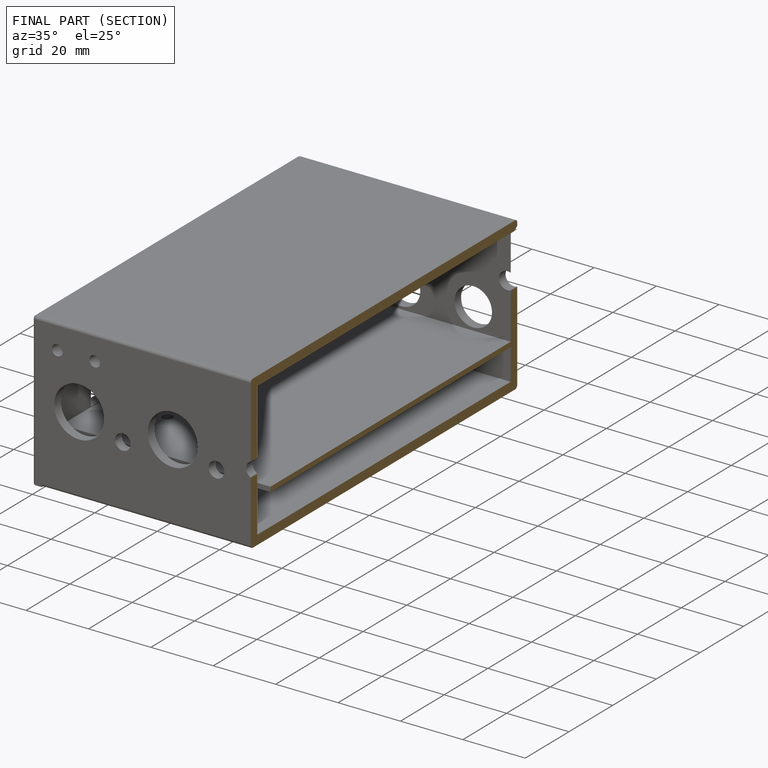
[diagram: finished part — half-section view (interior)]
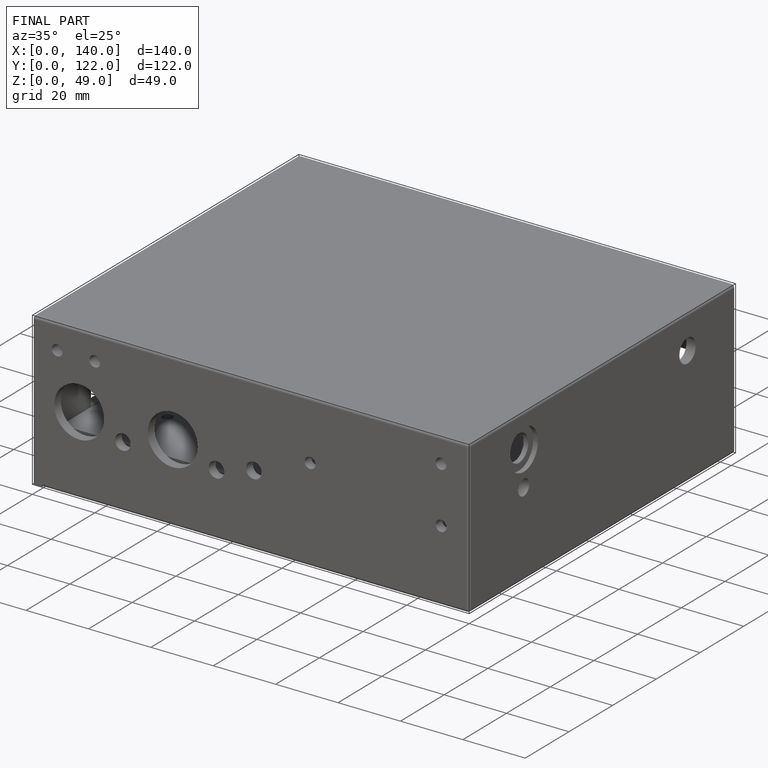
[diagram: finished part — iso view with bounding-box wireframe]
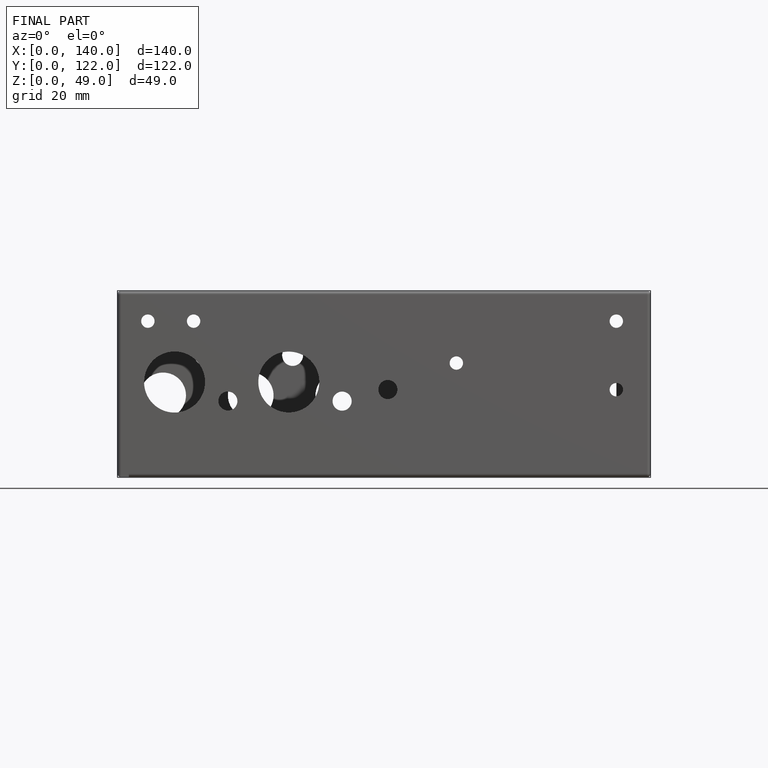
[diagram: finished part — front view with bounding-box wireframe]
